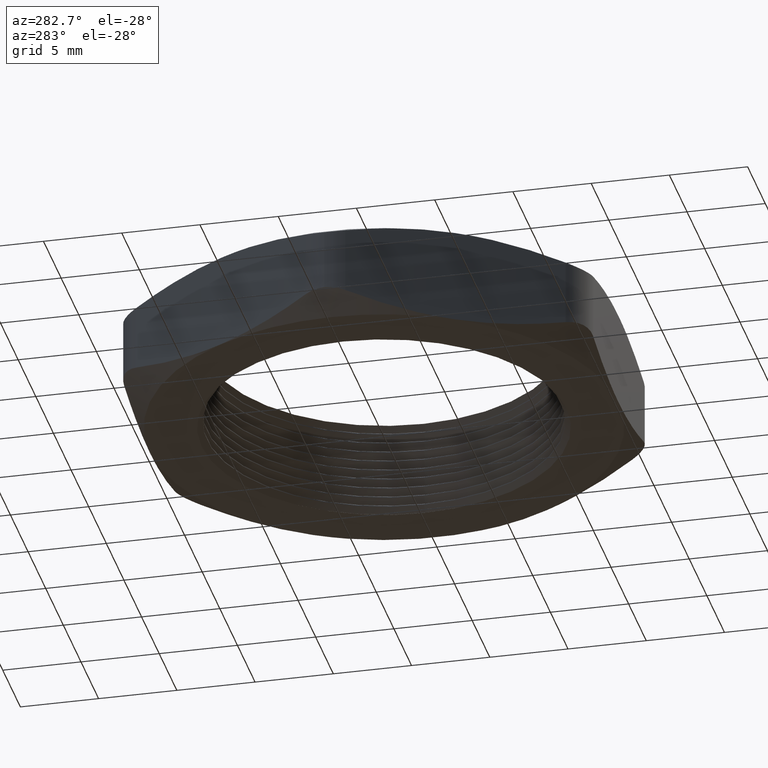
[diagram: clean part render]
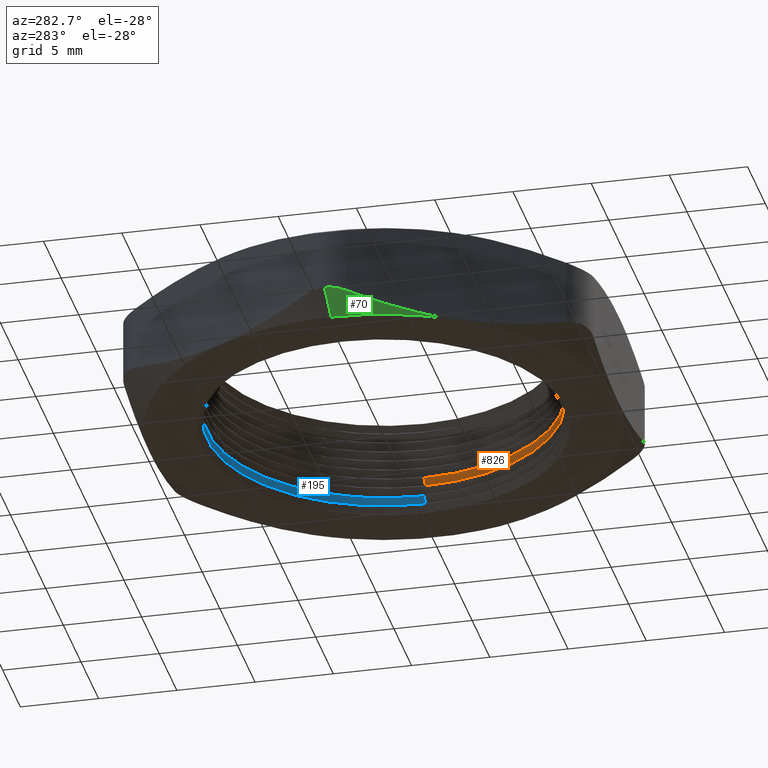
[diagram: same view with three faces highlighted in distinct colors, each labeled with its STEP entity id]
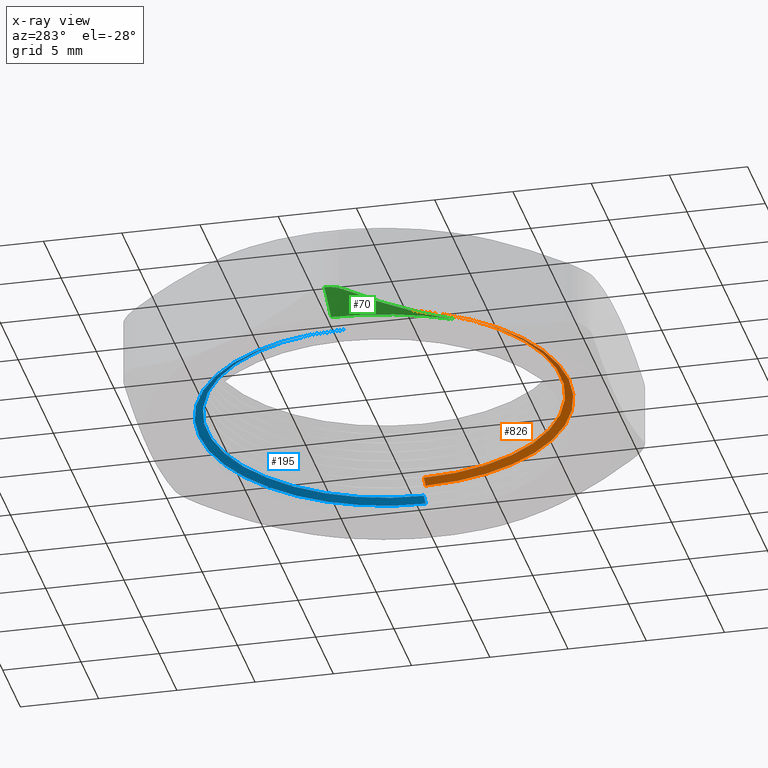
[diagram: x-ray of the same camera — body ghosted, the three highlighted faces saturated]
A machine part, auxiliary view with three faces highlighted in distinct colors.
The next image is the same camera in x-ray (body ghosted, the three faces saturated) — at least one of them is partly hidden behind the body in this view.
Their STEP definitions:

[orange] entity #826 — the highlighted conical surface has half-angle 60 deg.
#826 = ADVANCED_FACE ( 'NONE', ( #1755 ), #1754, .F. ) ;
#827 = EDGE_LOOP ( 'NONE', ( #837, #832, #834, #835 ) ) ;
#829 = VERTEX_POINT ( 'NONE', #1753 ) ;
#830 = EDGE_CURVE ( 'NONE', #838, #831, #1810, .T. ) ;
#831 = VERTEX_POINT ( 'NONE', #1805 ) ;
#832 = ORIENTED_EDGE ( 'NONE', *, *, #833, .T. ) ;
#833 = EDGE_CURVE ( 'NONE', #831, #829, #1804, .T. ) ;
#834 = ORIENTED_EDGE ( 'NONE', *, *, #890, .F. ) ;
#835 = ORIENTED_EDGE ( 'NONE', *, *, #836, .F. ) ;
#836 = EDGE_CURVE ( 'NONE', #838, #854, #1800, .T. ) ;
#837 = ORIENTED_EDGE ( 'NONE', *, *, #830, .T. ) ;
#838 = VERTEX_POINT ( 'NONE', #1796 ) ;
#854 = VERTEX_POINT ( 'NONE', #1833 ) ;
#890 = EDGE_CURVE ( 'NONE', #854, #829, #1882, .T. ) ;
#1749 = DIRECTION ( 'NONE',  ( -1.000000000000000000, 0.0000000000000000000, 0.0000000000000000000 ) ) ;
#1750 = DIRECTION ( 'NONE',  ( 0.0000000000000000000, 0.0000000000000000000, -1.000000000000000000 ) ) ;
#1751 = CARTESIAN_POINT ( 'NONE',  ( 0.0000000000000000000, 0.0000000000000000000, 0.07845299461620775000 ) ) ;
#1752 = AXIS2_PLACEMENT_3D ( 'NONE', #1751, #1750, #1749 ) ;
#1753 = CARTESIAN_POINT ( 'NONE',  ( 0.4650000000000000200, 5.694607616035193400E-017, 0.07845299461620775000 ) ) ;
#1754 = CONICAL_SURFACE ( 'NONE', #1752, 0.4650000000000000200, 1.047197551196607600 ) ;
#1755 = FACE_OUTER_BOUND ( 'NONE', #827, .T. ) ;
#1796 = CARTESIAN_POINT ( 'NONE',  ( -0.4450000000000000100, 0.0000000000000000000, 0.08999999999999999700 ) ) ;
#1797 = DIRECTION ( 'NONE',  ( -0.8660254037844434800, 0.0000000000000000000, -0.4999999999999913400 ) ) ;
#1798 = VECTOR ( 'NONE', #1797, 39.37007874015748900 ) ;
#1799 = CARTESIAN_POINT ( 'NONE',  ( -0.4650000000000000200, 0.0000000000000000000, 0.07845299461620775000 ) ) ;
#1800 = LINE ( 'NONE', #1799, #1798 ) ;
#1801 = DIRECTION ( 'NONE',  ( 0.8660254037844434800, 1.060575238724912700E-016, -0.4999999999999913400 ) ) ;
#1802 = VECTOR ( 'NONE', #1801, 39.37007874015748900 ) ;
#1803 = CARTESIAN_POINT ( 'NONE',  ( 0.4650000000000000200, 5.694607616035193400E-017, 0.07845299461620775000 ) ) ;
#1804 = LINE ( 'NONE', #1803, #1802 ) ;
#1805 = CARTESIAN_POINT ( 'NONE',  ( 0.4450000000000000100, 5.449678256205721400E-017, 0.08999999999999999700 ) ) ;
#1806 = DIRECTION ( 'NONE',  ( 1.000000000000000000, 0.0000000000000000000, 0.0000000000000000000 ) ) ;
#1807 = DIRECTION ( 'NONE',  ( 0.0000000000000000000, 0.0000000000000000000, 1.000000000000000000 ) ) ;
#1808 = CARTESIAN_POINT ( 'NONE',  ( 0.0000000000000000000, 0.0000000000000000000, 0.08999999999999999700 ) ) ;
#1809 = AXIS2_PLACEMENT_3D ( 'NONE', #1808, #1807, #1806 ) ;
#1810 = CIRCLE ( 'NONE', #1809, 0.4450000000000000100 ) ;
#1833 = CARTESIAN_POINT ( 'NONE',  ( -0.4650000000000000200, 0.0000000000000000000, 0.07845299461620775000 ) ) ;
#1878 = DIRECTION ( 'NONE',  ( 1.000000000000000000, 0.0000000000000000000, 0.0000000000000000000 ) ) ;
#1879 = DIRECTION ( 'NONE',  ( 0.0000000000000000000, 0.0000000000000000000, 1.000000000000000000 ) ) ;
#1880 = CARTESIAN_POINT ( 'NONE',  ( 0.0000000000000000000, 0.0000000000000000000, 0.07845299461620775000 ) ) ;
#1881 = AXIS2_PLACEMENT_3D ( 'NONE', #1880, #1879, #1878 ) ;
#1882 = CIRCLE ( 'NONE', #1881, 0.4650000000000000200 ) ;

[blue] entity #195 — the highlighted conical surface has half-angle 60 deg.
#194 = ORIENTED_EDGE ( 'NONE', *, *, #269, .F. ) ;
#195 = ADVANCED_FACE ( 'NONE', ( #1132 ), #1127, .F. ) ;
#245 = ORIENTED_EDGE ( 'NONE', *, *, #796, .T. ) ;
#251 = ORIENTED_EDGE ( 'NONE', *, *, #727, .T. ) ;
#258 = ORIENTED_EDGE ( 'NONE', *, *, #772, .F. ) ;
#269 = EDGE_CURVE ( 'NONE', #762, #882, #1180, .T. ) ;
#270 = EDGE_LOOP ( 'NONE', ( #258, #251, #245, #194 ) ) ;
#727 = EDGE_CURVE ( 'NONE', #770, #769, #1567, .T. ) ;
#762 = VERTEX_POINT ( 'NONE', #1680 ) ;
#769 = VERTEX_POINT ( 'NONE', #1664 ) ;
#770 = VERTEX_POINT ( 'NONE', #1663 ) ;
#772 = EDGE_CURVE ( 'NONE', #770, #762, #1662, .T. ) ;
#796 = EDGE_CURVE ( 'NONE', #769, #882, #1748, .T. ) ;
#882 = VERTEX_POINT ( 'NONE', #1898 ) ;
#1122 = DIRECTION ( 'NONE',  ( -1.000000000000000000, 0.0000000000000000000, 0.0000000000000000000 ) ) ;
#1123 = DIRECTION ( 'NONE',  ( 0.0000000000000000000, 0.0000000000000000000, -1.000000000000000000 ) ) ;
#1124 = CARTESIAN_POINT ( 'NONE',  ( 0.0000000000000000000, 0.0000000000000000000, 0.02845299461620773600 ) ) ;
#1125 = AXIS2_PLACEMENT_3D ( 'NONE', #1124, #1123, #1122 ) ;
#1127 = CONICAL_SURFACE ( 'NONE', #1125, 0.4650000000000000200, 1.047197551196607600 ) ;
#1132 = FACE_OUTER_BOUND ( 'NONE', #270, .T. ) ;
#1176 = DIRECTION ( 'NONE',  ( 1.000000000000000000, 0.0000000000000000000, 0.0000000000000000000 ) ) ;
#1177 = DIRECTION ( 'NONE',  ( 0.0000000000000000000, 0.0000000000000000000, 1.000000000000000000 ) ) ;
#1178 = CARTESIAN_POINT ( 'NONE',  ( 0.0000000000000000000, 0.0000000000000000000, 0.02845299461620773600 ) ) ;
#1179 = AXIS2_PLACEMENT_3D ( 'NONE', #1178, #1177, #1176 ) ;
#1180 = CIRCLE ( 'NONE', #1179, 0.4650000000000000200 ) ;
#1563 = DIRECTION ( 'NONE',  ( 1.000000000000000000, 0.0000000000000000000, 0.0000000000000000000 ) ) ;
#1564 = DIRECTION ( 'NONE',  ( 0.0000000000000000000, 0.0000000000000000000, 1.000000000000000000 ) ) ;
#1565 = CARTESIAN_POINT ( 'NONE',  ( 0.0000000000000000000, 0.0000000000000000000, 0.03999999999999998000 ) ) ;
#1566 = AXIS2_PLACEMENT_3D ( 'NONE', #1565, #1564, #1563 ) ;
#1567 = CIRCLE ( 'NONE', #1566, 0.4450000000000000100 ) ;
#1659 = DIRECTION ( 'NONE',  ( 0.8660254037844434800, 1.060575238724912700E-016, -0.4999999999999913400 ) ) ;
#1660 = VECTOR ( 'NONE', #1659, 39.37007874015748900 ) ;
#1661 = CARTESIAN_POINT ( 'NONE',  ( 0.4650000000000000200, 5.694607616035193400E-017, 0.02845299461620773600 ) ) ;
#1662 = LINE ( 'NONE', #1661, #1660 ) ;
#1663 = CARTESIAN_POINT ( 'NONE',  ( 0.4450000000000000100, 5.449678256205721400E-017, 0.03999999999999998000 ) ) ;
#1664 = CARTESIAN_POINT ( 'NONE',  ( -0.4450000000000000100, 0.0000000000000000000, 0.03999999999999998000 ) ) ;
#1680 = CARTESIAN_POINT ( 'NONE',  ( 0.4650000000000000200, 5.694607616035193400E-017, 0.02845299461620773600 ) ) ;
#1740 = DIRECTION ( 'NONE',  ( -0.8660254037844434800, 0.0000000000000000000, -0.4999999999999913400 ) ) ;
#1741 = VECTOR ( 'NONE', #1740, 39.37007874015748900 ) ;
#1742 = CARTESIAN_POINT ( 'NONE',  ( -0.4650000000000000200, 0.0000000000000000000, 0.02845299461620773600 ) ) ;
#1748 = LINE ( 'NONE', #1742, #1741 ) ;
#1898 = CARTESIAN_POINT ( 'NONE',  ( -0.4650000000000000200, 0.0000000000000000000, 0.02845299461620773600 ) ) ;

[green] entity #70 — the highlighted conical surface has half-angle 60 deg.
#70 = ADVANCED_FACE ( 'NONE', ( #427 ), #426, .T. ) ;
#71 = EDGE_LOOP ( 'NONE', ( #72, #73, #74, #75 ) ) ;
#72 = ORIENTED_EDGE ( 'NONE', *, *, #928, .F. ) ;
#73 = ORIENTED_EDGE ( 'NONE', *, *, #2492, .F. ) ;
#74 = ORIENTED_EDGE ( 'NONE', *, *, #607, .T. ) ;
#75 = ORIENTED_EDGE ( 'NONE', *, *, #917, .T. ) ;
#422 = DIRECTION ( 'NONE',  ( -1.000000000000000000, 0.0000000000000000000, 0.0000000000000000000 ) ) ;
#423 = DIRECTION ( 'NONE',  ( 0.0000000000000000000, 0.0000000000000000000, 1.000000000000000000 ) ) ;
#424 = AXIS2_PLACEMENT_3D ( 'NONE', #432, #423, #422 ) ;
#426 = CONICAL_SURFACE ( 'NONE', #424, 0.5900000000000000800, 1.047197551196600100 ) ;
#427 = FACE_OUTER_BOUND ( 'NONE', #71, .T. ) ;
#432 = CARTESIAN_POINT ( 'NONE',  ( 0.0000000000000000000, 0.0000000000000000000, 0.0000000000000000000 ) ) ;
#607 = EDGE_CURVE ( 'NONE', #2487, #918, #1308, .T. ) ;
#917 = EDGE_CURVE ( 'NONE', #918, #1076, #1949, .T. ) ;
#918 = VERTEX_POINT ( 'NONE', #1948 ) ;
#925 = VERTEX_POINT ( 'NONE', #1978 ) ;
#928 = EDGE_CURVE ( 'NONE', #925, #1076, #1976, .T. ) ;
#1076 = VERTEX_POINT ( 'NONE', #2242 ) ;
#1299 = CARTESIAN_POINT ( 'NONE',  ( -0.6524058041842646400, -0.05000000000002120800, 0.03713458295163934300 ) ) ;
#1300 = CARTESIAN_POINT ( 'NONE',  ( -0.6292673937338231200, -0.09007690250656866200, 0.02558280531086772100 ) ) ;
#1301 = CARTESIAN_POINT ( 'NONE',  ( -0.6059455771186099700, -0.1304714738089221600, 0.01624550963464727000 ) ) ;
#1302 = CARTESIAN_POINT ( 'NONE',  ( -0.5705983417541211600, -0.1916946813673117100, 0.006640736604252336000 ) ) ;
#1303 = CARTESIAN_POINT ( 'NONE',  ( -0.5587551826901008300, -0.2122076345883144300, 0.004172620103817797400 ) ) ;
#1304 = CARTESIAN_POINT ( 'NONE',  ( -0.5349351559654611500, -0.2534651311130395900, 0.0008508108931426956700 ) ) ;
#1305 = CARTESIAN_POINT ( 'NONE',  ( -0.5229146370110714400, -0.2742852806753872700, -4.179585146556648900E-016 ) ) ;
#1306 = CARTESIAN_POINT ( 'NONE',  ( -0.5109549882328189300, -0.2949999999999997600, 0.0000000000000000000 ) ) ;
#1308 = B_SPLINE_CURVE_WITH_KNOTS ( 'NONE', 3,
 ( #1306, #1305, #1304, #1303, #1302, #1301, #1300, #1299 ),
 .UNSPECIFIED., .F., .F.,
 ( 4, 2, 2, 4 ),
 ( 0.008754818042027731300, 0.01055895048476087800, 0.01236308292749402300, 0.01597134781296032100 ),
 .UNSPECIFIED. ) ;
#1942 = CARTESIAN_POINT ( 'NONE',  ( -0.6658032638058331000, -2.492365655275047400E-025, 0.04376503476374972400 ) ) ;
#1943 = CARTESIAN_POINT ( 'NONE',  ( -0.6658032638058332100, -0.008796958277300906800, 0.04376503476374973800 ) ) ;
#1944 = CARTESIAN_POINT ( 'NONE',  ( -0.6646291145683190800, -0.01761796163044082600, 0.04319017969490461500 ) ) ;
#1945 = CARTESIAN_POINT ( 'NONE',  ( -0.6600528044583136000, -0.03455380496757552700, 0.04093489126386394600 ) ) ;
#1946 = CARTESIAN_POINT ( 'NONE',  ( -0.6567251149565678200, -0.04251873428871206400, 0.03929098508247414600 ) ) ;
#1947 = CARTESIAN_POINT ( 'NONE',  ( -0.6524058041842646400, -0.05000000000002120800, 0.03713458295163934300 ) ) ;
#1948 = CARTESIAN_POINT ( 'NONE',  ( -0.6524058041842646400, -0.05000000000002120800, 0.03713458295163934300 ) ) ;
#1949 = B_SPLINE_CURVE_WITH_KNOTS ( 'NONE', 3,
 ( #1947, #1946, #1945, #1944, #1943, #1942 ),
 .UNSPECIFIED., .F., .F.,
 ( 4, 2, 4 ),
 ( 5.714856288214182600E-017, 0.0006693429813221745200, 0.001338685962644292000 ),
 .UNSPECIFIED. ) ;
#1973 = DIRECTION ( 'NONE',  ( -0.8660254037844397100, 0.0000000000000000000, 0.4999999999999979500 ) ) ;
#1974 = VECTOR ( 'NONE', #1973, 39.37007874015748900 ) ;
#1975 = CARTESIAN_POINT ( 'NONE',  ( -0.5900000000000000800, 0.0000000000000000000, 0.0000000000000000000 ) ) ;
#1976 = LINE ( 'NONE', #1975, #1974 ) ;
#1978 = CARTESIAN_POINT ( 'NONE',  ( -0.5899999999999999700, 0.0000000000000000000, 0.0000000000000000000 ) ) ;
#2242 = CARTESIAN_POINT ( 'NONE',  ( -0.6658032638058331000, -2.492365655275047400E-025, 0.04376503476374972400 ) ) ;
#2279 = DIRECTION ( 'NONE',  ( -1.000000000000000000, 0.0000000000000000000, 0.0000000000000000000 ) ) ;
#2280 = DIRECTION ( 'NONE',  ( 0.0000000000000000000, 0.0000000000000000000, -1.000000000000000000 ) ) ;
#2281 = CARTESIAN_POINT ( 'NONE',  ( 0.0000000000000000000, 0.0000000000000000000, 0.0000000000000000000 ) ) ;
#2282 = AXIS2_PLACEMENT_3D ( 'NONE', #2281, #2280, #2279 ) ;
#2283 = CIRCLE ( 'NONE', #2282, 0.5899999999999999700 ) ;
#2287 = CARTESIAN_POINT ( 'NONE',  ( -0.5109549882328189300, -0.2949999999999997600, 0.0000000000000000000 ) ) ;
#2487 = VERTEX_POINT ( 'NONE', #2287 ) ;
#2492 = EDGE_CURVE ( 'NONE', #2487, #925, #2283, .T. ) ;